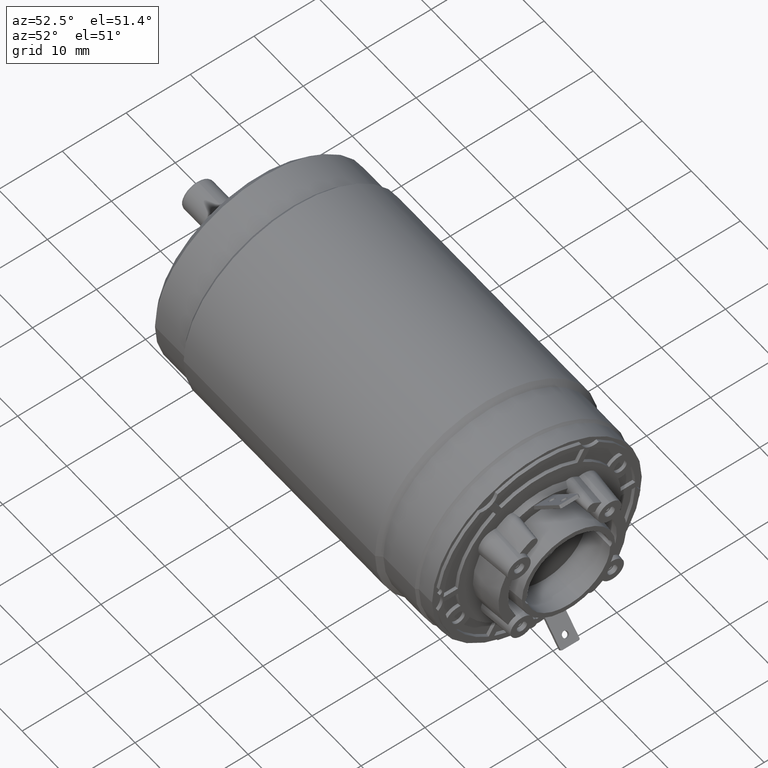
[diagram: clean part render]
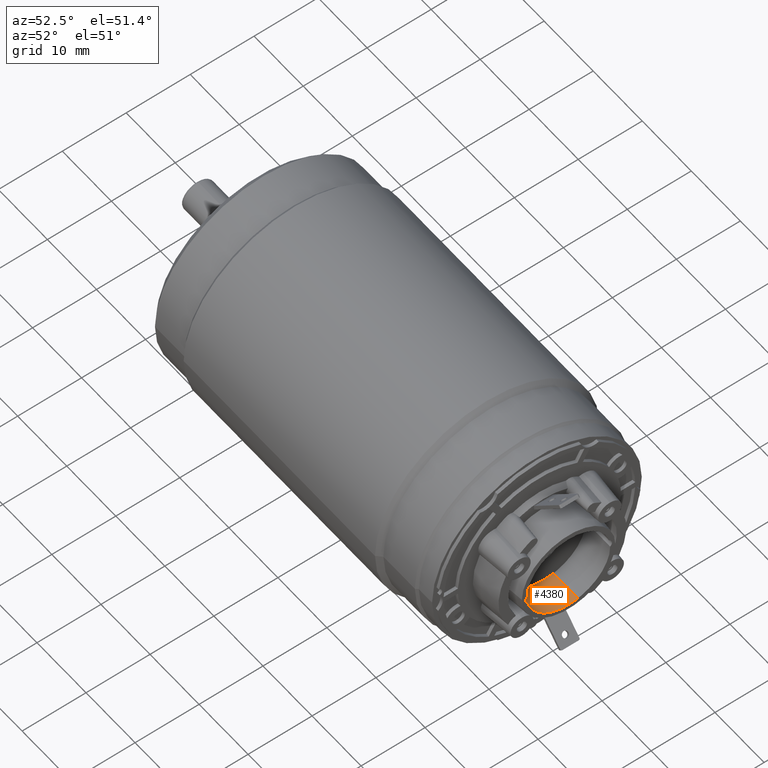
[diagram: same view with one face highlighted and labeled with its STEP entity id]
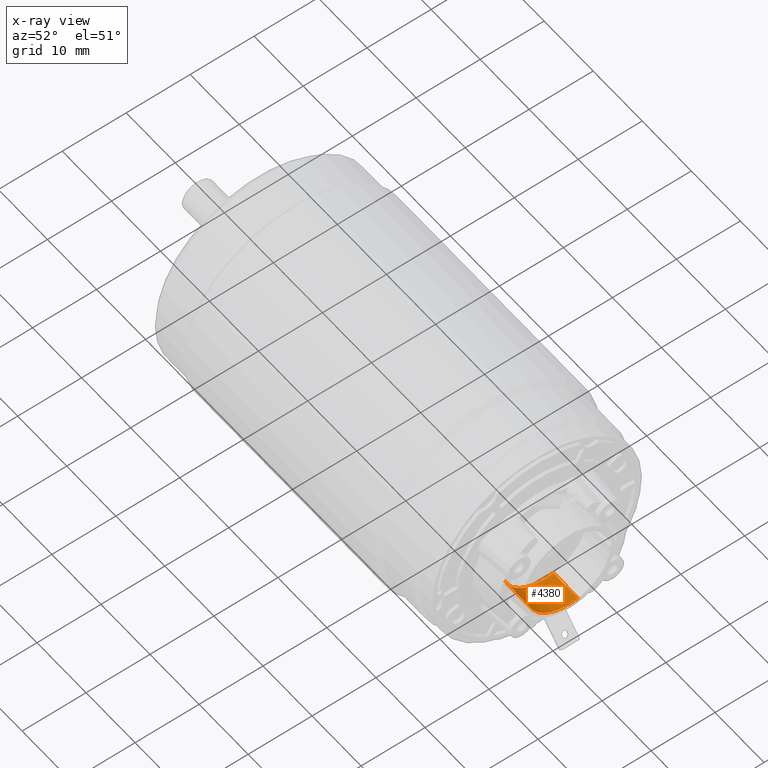
[diagram: x-ray of the same camera — body ghosted, the highlighted face saturated]
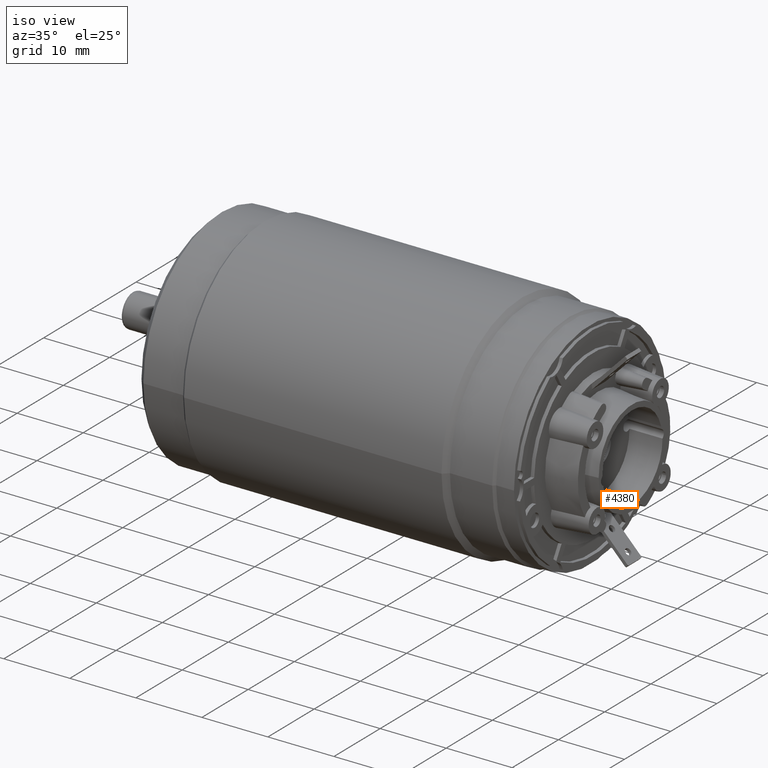
[diagram: same view with one face highlighted and labeled with its STEP entity id]
A machine part, auxiliary view. The second image highlights one B-rep face of the part: STEP entity #4380.
The next image is the same camera in x-ray: the body ghosted, the highlighted face saturated — about 0% of this face is hidden behind the body in this view.
A second angle (iso view) of the same face is appended — the face is thin or edge-on in the first view.
In plain terms, the highlighted cylindrical surface (partial cylindrical patch) has radius 6.5 mm, axis along (-1, 0, 0).
Its self-contained STEP definition (entity closure, byte-faithful):
#627=DIRECTION('',(-1.E0,0.E0,0.E0));
#628=VECTOR('',#627,5.E0);
#629=CARTESIAN_POINT('',(1.32E1,-6.224225131018E0,-1.873238243898E0));
#630=LINE('',#629,#628);
#631=CARTESIAN_POINT('',(8.2E0,0.E0,0.E0));
#632=DIRECTION('',(1.E0,0.E0,0.E0));
#633=DIRECTION('',(0.E0,-9.575730970797E-1,-2.881904990612E-1));
#634=AXIS2_PLACEMENT_3D('',#631,#632,#633);
#636=DIRECTION('',(-1.E0,0.E0,0.E0));
#637=VECTOR('',#636,5.E0);
#638=CARTESIAN_POINT('',(1.32E1,1.489840658953E0,-6.326956204284E0));
#639=LINE('',#638,#637);
#640=CARTESIAN_POINT('',(1.32E1,0.E0,0.E0));
#641=DIRECTION('',(-1.E0,0.E0,0.E0));
#642=DIRECTION('',(0.E0,2.292062552235E-1,-9.733778775822E-1));
#643=AXIS2_PLACEMENT_3D('',#640,#641,#642);
#3219=CARTESIAN_POINT('',(1.32E1,1.489840658953E0,-6.326956204284E0));
#3221=VERTEX_POINT('',#3219);
#3224=CARTESIAN_POINT('',(8.2E0,1.489840658953E0,-6.326956204284E0));
#3225=VERTEX_POINT('',#3224);
#3226=CARTESIAN_POINT('',(1.32E1,-6.224225131018E0,-1.873238243898E0));
#3228=VERTEX_POINT('',#3226);
#3230=CARTESIAN_POINT('',(8.2E0,-6.224225131018E0,-1.873238243898E0));
#3231=VERTEX_POINT('',#3230);
#4367=CARTESIAN_POINT('',(6.007741892316E1,0.E0,0.E0));
#4368=DIRECTION('',(-1.E0,0.E0,0.E0));
#4369=DIRECTION('',(0.E0,1.E0,0.E0));
#4370=AXIS2_PLACEMENT_3D('',#4367,#4368,#4369);
#4371=CYLINDRICAL_SURFACE('',#4370,6.5E0);
#4373=ORIENTED_EDGE('',*,*,#4372,.T.);
#4374=ORIENTED_EDGE('',*,*,#4291,.T.);
#4376=ORIENTED_EDGE('',*,*,#4375,.F.);
#4377=ORIENTED_EDGE('',*,*,#3653,.T.);
#4378=EDGE_LOOP('',(#4373,#4374,#4376,#4377));
#4379=FACE_OUTER_BOUND('',#4378,.F.);
#4380=ADVANCED_FACE('',(#4379),#4371,.F.);
#635=CIRCLE('',#634,6.5E0);
#644=CIRCLE('',#643,6.5E0);
#3653=EDGE_CURVE('',#3221,#3228,#644,.T.);
#4291=EDGE_CURVE('',#3231,#3225,#635,.T.);
#4372=EDGE_CURVE('',#3228,#3231,#630,.T.);
#4375=EDGE_CURVE('',#3221,#3225,#639,.T.);